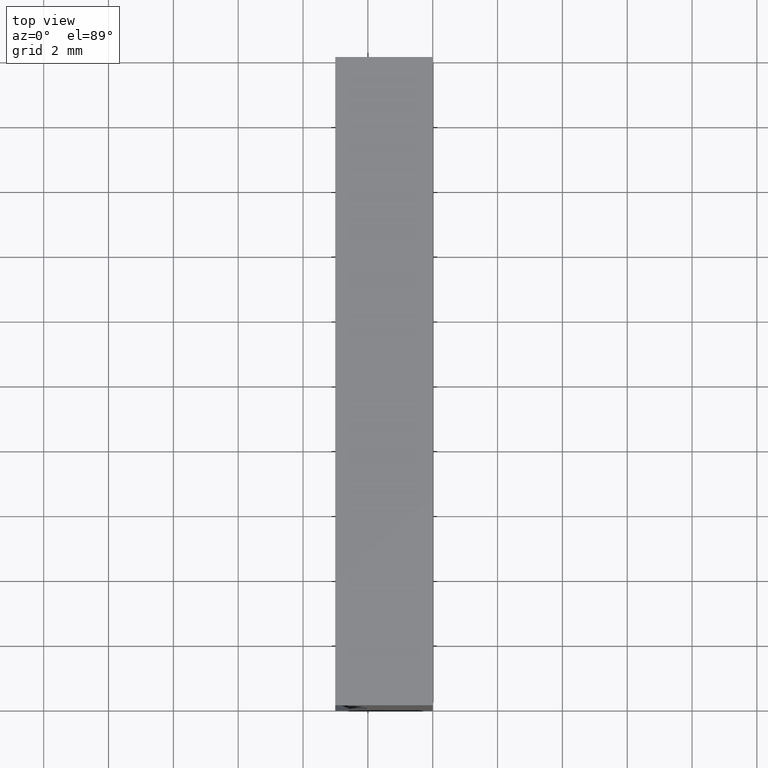
[diagram: clean part render]
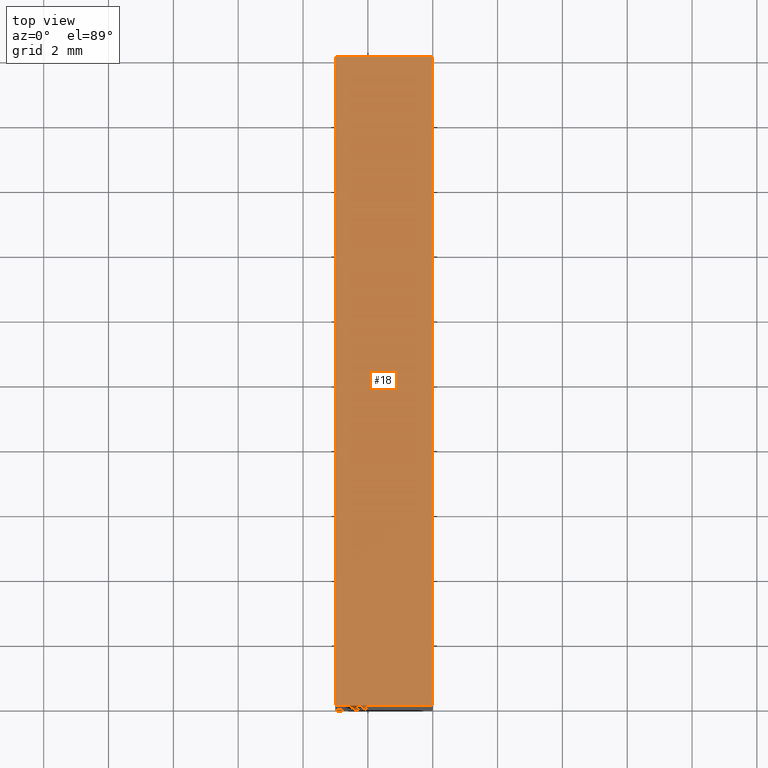
[diagram: same view with one face highlighted and labeled with its STEP entity id]
A machine part, top view. The second image highlights one B-rep face of the part: STEP entity #18.
In plain terms, the highlighted planar face has unit normal (-0, 0, -1).
Its self-contained STEP definition (entity closure, byte-faithful):
#1 = LINE ( 'NONE', #127, #135 ) ;
#3 = VERTEX_POINT ( 'NONE', #53 ) ;
#18 = ADVANCED_FACE ( 'NONE', ( #73 ), #187, .F. ) ;
#27 = CARTESIAN_POINT ( 'NONE',  ( 6.123233995736766300E-016, 0.0000000000000000000, 10.00000000000000000 ) ) ;
#37 = ORIENTED_EDGE ( 'NONE', *, *, #61, .F. ) ;
#41 = DIRECTION ( 'NONE',  ( -5.771121341056383500E-016, 0.0000000000000000000, -1.000000000000000000 ) ) ;
#48 = CARTESIAN_POINT ( 'NONE',  ( -3.005869004409586600, 20.00000000000000000, 10.00000000000000200 ) ) ;
#53 = CARTESIAN_POINT ( 'NONE',  ( -3.005869004409586600, 20.00000000000000000, 10.00000000000000200 ) ) ;
#54 = CARTESIAN_POINT ( 'NONE',  ( -3.005869004409586600, 0.0000000000000000000, 10.00000000000000200 ) ) ;
#61 = EDGE_CURVE ( 'NONE', #3, #157, #1, .T. ) ;
#63 = CARTESIAN_POINT ( 'NONE',  ( 6.123233995736766300E-016, 20.00000000000000000, 10.00000000000000000 ) ) ;
#71 = CARTESIAN_POINT ( 'NONE',  ( 6.123233995736766300E-016, 0.0000000000000000000, 10.00000000000000000 ) ) ;
#72 = VERTEX_POINT ( 'NONE', #54 ) ;
#73 = FACE_OUTER_BOUND ( 'NONE', #180, .T. ) ;
#94 = LINE ( 'NONE', #105, #129 ) ;
#98 = EDGE_CURVE ( 'NONE', #72, #165, #145, .T. ) ;
#104 = VECTOR ( 'NONE', #120, 1000.000000000000000 ) ;
#105 = CARTESIAN_POINT ( 'NONE',  ( 6.123233995736766300E-016, 20.00000000000000000, 10.00000000000000000 ) ) ;
#113 = CARTESIAN_POINT ( 'NONE',  ( 6.123233995736766300E-016, 20.00000000000000000, 10.00000000000000000 ) ) ;
#120 = DIRECTION ( 'NONE',  ( -0.0000000000000000000, -1.000000000000000000, -0.0000000000000000000 ) ) ;
#127 = CARTESIAN_POINT ( 'NONE',  ( 6.123233995736766300E-016, 20.00000000000000000, 10.00000000000000000 ) ) ;
#129 = VECTOR ( 'NONE', #194, 1000.000000000000000 ) ;
#133 = ORIENTED_EDGE ( 'NONE', *, *, #98, .T. ) ;
#135 = VECTOR ( 'NONE', #184, 1000.000000000000000 ) ;
#138 = LINE ( 'NONE', #48, #104 ) ;
#145 = LINE ( 'NONE', #71, #195 ) ;
#149 = EDGE_CURVE ( 'NONE', #157, #165, #94, .T. ) ;
#157 = VERTEX_POINT ( 'NONE', #63 ) ;
#158 = DIRECTION ( 'NONE',  ( 1.000000000000000000, -0.0000000000000000000, -5.771121341056383500E-016 ) ) ;
#159 = EDGE_CURVE ( 'NONE', #3, #72, #138, .T. ) ;
#165 = VERTEX_POINT ( 'NONE', #27 ) ;
#166 = ORIENTED_EDGE ( 'NONE', *, *, #159, .T. ) ;
#180 = EDGE_LOOP ( 'NONE', ( #133, #203, #37, #166 ) ) ;
#181 = DIRECTION ( 'NONE',  ( -1.000000000000000000, 0.0000000000000000000, 5.771121341056383500E-016 ) ) ;
#184 = DIRECTION ( 'NONE',  ( 1.000000000000000000, -0.0000000000000000000, -5.771121341056383500E-016 ) ) ;
#187 = PLANE ( 'NONE',  #199 ) ;
#194 = DIRECTION ( 'NONE',  ( -0.0000000000000000000, -1.000000000000000000, -0.0000000000000000000 ) ) ;
#195 = VECTOR ( 'NONE', #158, 1000.000000000000000 ) ;
#199 = AXIS2_PLACEMENT_3D ( 'NONE', #113, #41, #181 ) ;
#203 = ORIENTED_EDGE ( 'NONE', *, *, #149, .F. ) ;